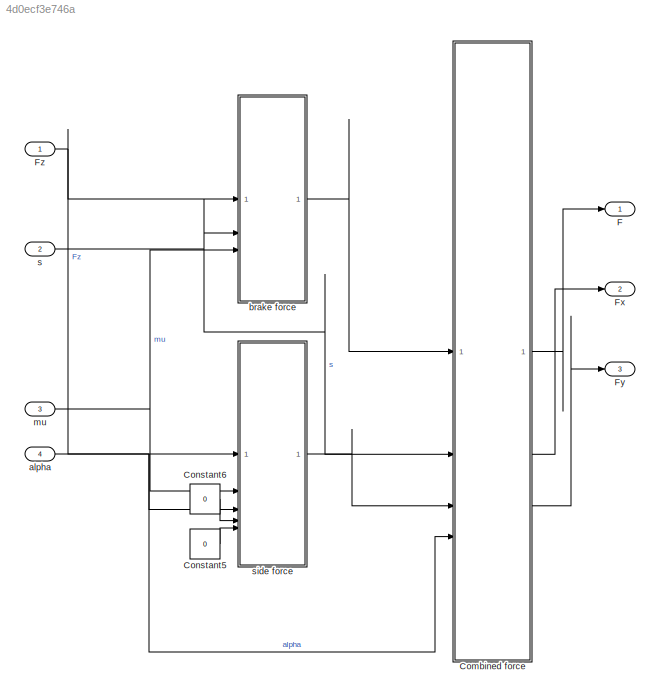
MODEL slx_4d0ecf3e746a
KIND model
CONFIG AbsTol = auto
CONFIG EnableMultiTasking = off
CONFIG FixedStep = 0.005
CONFIG MaxStep = auto
CONFIG MinStep = 1e-1
CONFIG PreLoadFcn = % Adding to path the location of .slx file:\naddpath(fileparts(get_param(bdroot,'FileName')));\n\n% init values:\npacajeka_init;
CONFIG RelTol = 1e-3
CONFIG SampleTimeConstraint = Unconstrained
CONFIG SolverName = FixedStepAuto
CONFIG StartTime = 0.0
CONFIG StopTime = 1
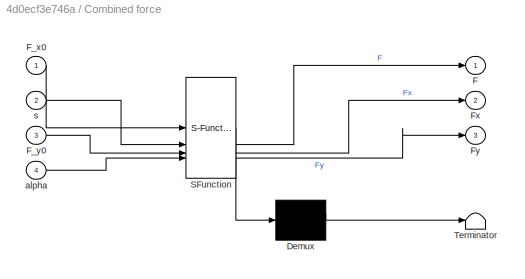
BLOCK [SubSystem] Combined force
  ErrorFcn = Stateflow.Translate.translate
  PermitHierarchicalResolution = ExplicitOnly
  SFBlockType = MATLAB Function
  TreatAsAtomicUnit = on
BLOCK [Demux] Combined force/ Demux 
  Outputs = 1
BLOCK [S-Function] Combined force/ SFunction 
  EnableBusSupport = on
  FunctionName = sf_sfun
  PortCounts = [4 4]
  SFcnIsStateOwnerBlock = off
  SFunctionDeploymentMode = off
  Tag = Stateflow S-Function 3
BLOCK [Terminator] Combined force/ Terminator 
BLOCK [Outport] Combined force/F
BLOCK [Inport] Combined force/F_x0
BLOCK [Inport] Combined force/F_y0
  Port = 3
BLOCK [Outport] Combined force/Fx
  Port = 2
BLOCK [Outport] Combined force/Fy
  Port = 3
BLOCK [Inport] Combined force/alpha
  Port = 4
BLOCK [Inport] Combined force/s
  Port = 2
BLOCK [Constant] Constant5
  Value = 0
BLOCK [Constant] Constant6
  Value = 0
BLOCK [Outport] F
  SignalName = F
BLOCK [Outport] Fx
  Port = 2
  SignalName = Fx
BLOCK [Outport] Fy
  Port = 3
  SignalName = Fy
BLOCK [Inport] Fz
  IconDisplay = Signal name
BLOCK [Inport] alpha
  IconDisplay = Signal name
  Port = 4
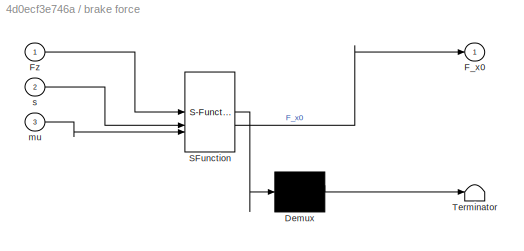
BLOCK [SubSystem] brake force 
  ErrorFcn = Stateflow.Translate.translate
  PermitHierarchicalResolution = ExplicitOnly
  SFBlockType = MATLAB Function
  TreatAsAtomicUnit = on
BLOCK [Demux] brake force / Demux 
  Outputs = 1
BLOCK [S-Function] brake force / SFunction 
  EnableBusSupport = on
  FunctionName = sf_sfun
  Parameters = b0,b1,b2,b3,b4,b5,b6,b7,b8
  PortCounts = [3 2]
  SFcnIsStateOwnerBlock = off
  SFunctionDeploymentMode = off
  Tag = Stateflow S-Function 2
BLOCK [Terminator] brake force / Terminator 
BLOCK [Outport] brake force /F_x0
BLOCK [Inport] brake force /Fz
BLOCK [Inport] brake force /mu
  Port = 3
BLOCK [Inport] brake force /s
  Port = 2
BLOCK [Inport] mu
  IconDisplay = Signal name
  Port = 3
BLOCK [Inport] s
  IconDisplay = Signal name
  Port = 2
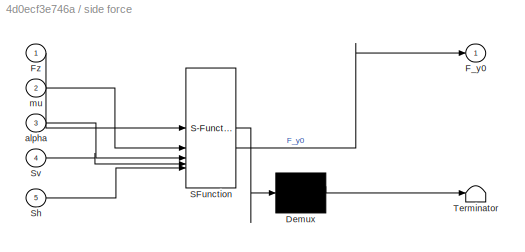
BLOCK [SubSystem] side force
  ErrorFcn = Stateflow.Translate.translate
  PermitHierarchicalResolution = ExplicitOnly
  SFBlockType = MATLAB Function
  TreatAsAtomicUnit = on
BLOCK [Demux] side force/ Demux 
  Outputs = 1
BLOCK [S-Function] side force/ SFunction 
  EnableBusSupport = on
  FunctionName = sf_sfun
  Parameters = a0,a1,a2,a3,a4,a5,a6,a7,a8
  PortCounts = [5 2]
  SFcnIsStateOwnerBlock = off
  SFunctionDeploymentMode = off
  Tag = Stateflow S-Function 1
BLOCK [Terminator] side force/ Terminator 
BLOCK [Outport] side force/F_y0
BLOCK [Inport] side force/Fz
BLOCK [Inport] side force/Sh
  Port = 5
BLOCK [Inport] side force/Sv
  Port = 4
BLOCK [Inport] side force/alpha
  Port = 3
BLOCK [Inport] side force/mu
  Port = 2
LINE Combined force:1 -> F:1
LINE Combined force:2 -> Fx:1
LINE Combined force:3 -> Fy:1
LINE Constant5:1 -> side force:5
LINE Constant6:1 -> side force:4
NET Fz:1 -> brake force :1, side force:1
NET alpha:1 -> Combined force:4, side force:3
LINE brake force :1 -> Combined force:1
NET mu:1 -> brake force :3, side force:2
NET s:1 -> Combined force:2, brake force :2
LINE side force:1 -> Combined force:3
note: NET lines group one-source signal fan-out (src -> all destinations, sorted); 1:1 wires keep LINE
CHART side force states=1 transitions=1
  STATE_LABEL 'eML_blk_kernel()'
  STATE_LABEL 'SCRIPT:\nfunction F_y0 = fcn(Fz, mu, alpha, Sv, Sh, a0, a1, a2, a3, a4, a6, ...\n    a7, a5, a8)\npersistent C D B E\n\n% init persistent variables: \nif isempty(C)\n    C = a0;\n    D = mu*(a1*Fz^2 + a2*Fz);\n    B = (a3*sin(a4*atan(Fz/a5)))/C/D;\n    E = a6*Fz^2 + a7*Fz + a8;\n\nend\nX = alpha+Sh;\nphi = (1-E)*X + E/B*atan(B*X);\nF_y0 = -(D*sin(C*atan(B*phi)) +Sv);\n'
CHART brake force  states=1 transitions=1
  STATE_LABEL 'eML_blk_kernel()'
  STATE_LABEL 'SCRIPT:\nfunction F_x0 = fcn(Fz, s, mu, b0, b1, b2, b3, b4, b6, b7, b5, b8)\npersistent C D B E\n\n% init persistent variables: \nif isempty(C)\n    C = b0;\n    D = mu*(b1*Fz^2 + b2*Fz);\n    B = (b3*Fz^2 + b4*Fz)/(C*D)*exp(-b5*Fz);\n    E = b6*Fz^2 + b7*Fz + b8;\n\nend\nX = s;\nphi = (1-E)*X + E/B*atan(B*X);\nF_x0 = (D*sin(C*atan(B*phi)));\n'
CHART Combined force states=1 transitions=1
  STATE_LABEL 'eML_blk_kernel()'
  STATE_LABEL 'SCRIPT:\n function [F, Fx, Fy] = fcn(F_x0, s, F_y0, alpha)\n\n\n% normalization of s\ns = s/100;\nalpha_rad = alpha/180*pi;\n\nbeta = atan2(sin(alpha_rad), s);\n\nFx = F_x0*abs(cos(beta));\n\nFy = F_y0*abs(sin(beta));\n\nF =  F_x0*cos(beta)^2 + F_y0*sin(beta)^2;\n'
CHART  states=0 transitions=0
CHART  states=0 transitions=0
CHART  states=0 transitions=0
